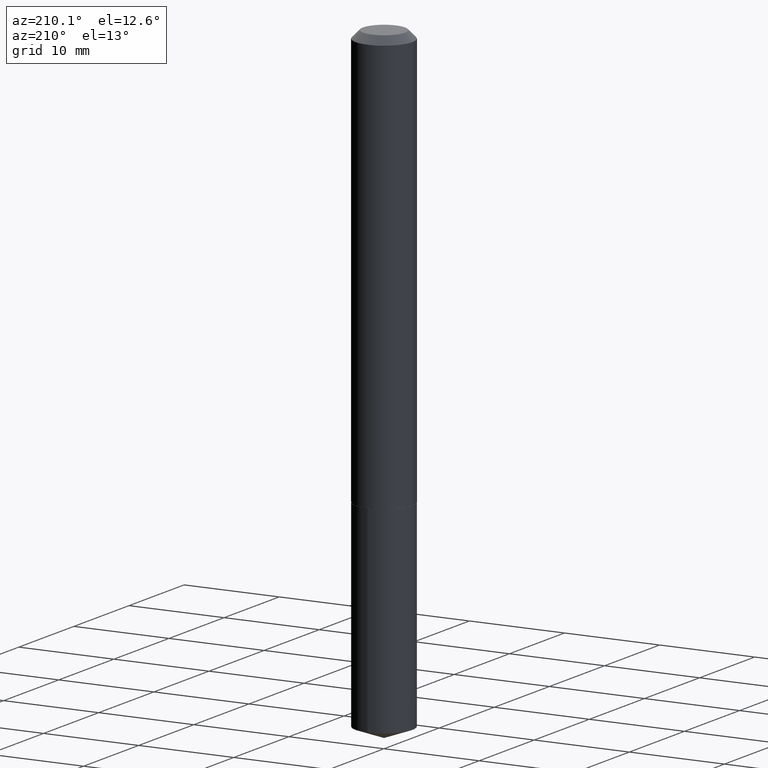
[diagram: clean part render]
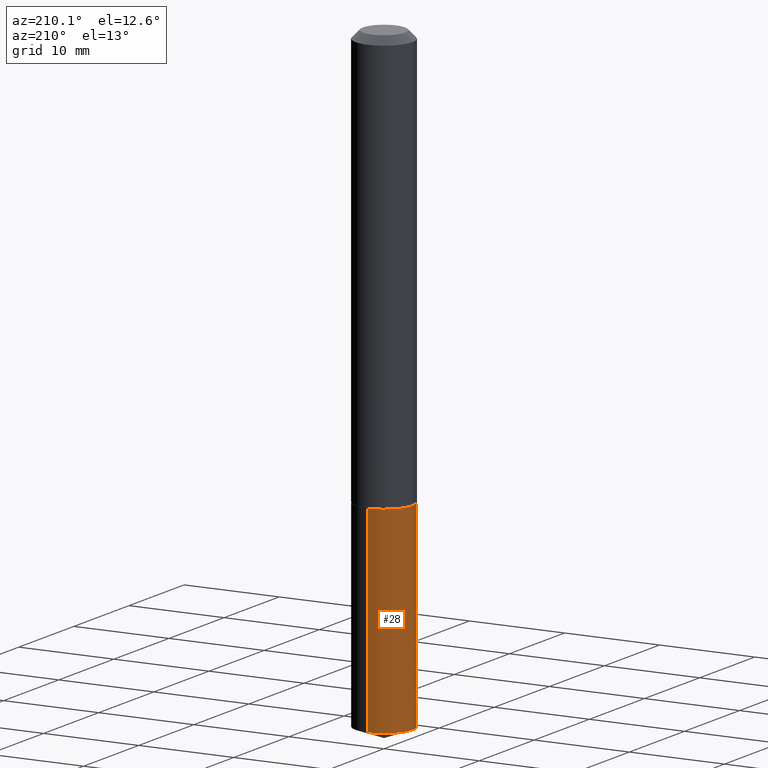
[diagram: same view with one face highlighted and labeled with its STEP entity id]
A machine part, auxiliary view. The second image highlights one B-rep face of the part: STEP entity #28.
In plain terms, the highlighted cylindrical surface (edge-blend (fillet) strip) has radius 2.9997 mm, axis along (-0, 0, 1).
Its self-contained STEP definition (entity closure, byte-faithful):
#7 = DIRECTION ( 'NONE',  ( -2.443006926696286380E-29, 3.495006890392658016E-15, 1.000000000000000000 ) ) ;
#8 = ORIENTED_EDGE ( 'NONE', *, *, #19, .F. ) ;
#19 = EDGE_CURVE ( 'NONE', #129, #320, #307, .T. ) ;
#28 = ADVANCED_FACE ( 'NONE', ( #340 ), #273, .T. ) ;
#29 = AXIS2_PLACEMENT_3D ( 'NONE', #305, #7, #118 ) ;
#37 = DIRECTION ( 'NONE',  ( -2.443006926696286380E-29, 3.495006890392658410E-15, 1.000000000000000000 ) ) ;
#44 = DIRECTION ( 'NONE',  ( -6.982962677686265922E-15, -1.000000000000000000, 4.626330217890369336E-15 ) ) ;
#50 = DIRECTION ( 'NONE',  ( -6.982962677686265922E-15, -1.000000000000000000, 4.626330217890369336E-15 ) ) ;
#67 = EDGE_LOOP ( 'NONE', ( #8, #94, #212, #258 ) ) ;
#68 = DIRECTION ( 'NONE',  ( -2.443006926696286380E-29, 3.495006890392658016E-15, 1.000000000000000000 ) ) ;
#72 = LINE ( 'NONE', #117, #99 ) ;
#94 = ORIENTED_EDGE ( 'NONE', *, *, #332, .T. ) ;
#99 = VECTOR ( 'NONE', #188, 39.37007874015748143 ) ;
#100 = AXIS2_PLACEMENT_3D ( 'NONE', #195, #324, #50 ) ;
#103 = VERTEX_POINT ( 'NONE', #354 ) ;
#117 = CARTESIAN_POINT ( 'NONE',  ( -8.246878922347056641E-16, -0.1181000000000060474, -1.732199999999999074 ) ) ;
#118 = DIRECTION ( 'NONE',  ( -6.982962677686265922E-15, -1.000000000000000000, 4.626330217890369336E-15 ) ) ;
#129 = VERTEX_POINT ( 'NONE', #350 ) ;
#164 = EDGE_CURVE ( 'NONE', #103, #274, #72, .T. ) ;
#178 = CIRCLE ( 'NONE', #185, 0.1180999999999999966 ) ;
#185 = AXIS2_PLACEMENT_3D ( 'NONE', #262, #68, #44 ) ;
#188 = DIRECTION ( 'NONE',  ( -2.443006926696286380E-29, 3.495006890392658410E-15, 1.000000000000000000 ) ) ;
#195 = CARTESIAN_POINT ( 'NONE',  ( 6.247161294993890349E-29, -8.925086475508884590E-15, -2.555415115333162124 ) ) ;
#212 = ORIENTED_EDGE ( 'NONE', *, *, #164, .T. ) ;
#231 = EDGE_CURVE ( 'NONE', #320, #274, #178, .T. ) ;
#258 = ORIENTED_EDGE ( 'NONE', *, *, #231, .F. ) ;
#262 = CARTESIAN_POINT ( 'NONE',  ( 4.236041066073892487E-29, -6.047943975144095988E-15, -1.732199999999999518 ) ) ;
#273 = CYLINDRICAL_SURFACE ( 'NONE', #29, 0.1180999999999999966 ) ;
#274 = VERTEX_POINT ( 'NONE', #285 ) ;
#285 = CARTESIAN_POINT ( 'NONE',  ( -8.246878922347056641E-16, -0.1181000000000060474, -1.732199999999999074 ) ) ;
#305 = CARTESIAN_POINT ( 'NONE',  ( 4.236041066073892487E-29, -6.047943975144095988E-15, -1.732199999999999518 ) ) ;
#306 = CARTESIAN_POINT ( 'NONE',  ( 8.391509709327204997E-16, 0.1180999999999939598, -1.732200000000000184 ) ) ;
#307 = LINE ( 'NONE', #306, #364 ) ;
#320 = VERTEX_POINT ( 'NONE', #355 ) ;
#324 = DIRECTION ( 'NONE',  ( -2.443006926696286380E-29, 3.495006890392658016E-15, 1.000000000000000000 ) ) ;
#332 = EDGE_CURVE ( 'NONE', #129, #103, #380, .T. ) ;
#340 = FACE_OUTER_BOUND ( 'NONE', #67, .T. ) ;
#350 = CARTESIAN_POINT ( 'NONE',  ( 8.391509709327407143E-16, 0.1180999999999910871, -2.555415115333162568 ) ) ;
#354 = CARTESIAN_POINT ( 'NONE',  ( -8.246878922346857454E-16, -0.1181000000000089339, -2.555415115333161236 ) ) ;
#355 = CARTESIAN_POINT ( 'NONE',  ( 8.391509709327408129E-16, 0.1180999999999939598, -1.732200000000000184 ) ) ;
#364 = VECTOR ( 'NONE', #37, 39.37007874015748143 ) ;
#380 = CIRCLE ( 'NONE', #100, 0.1180999999999999966 ) ;